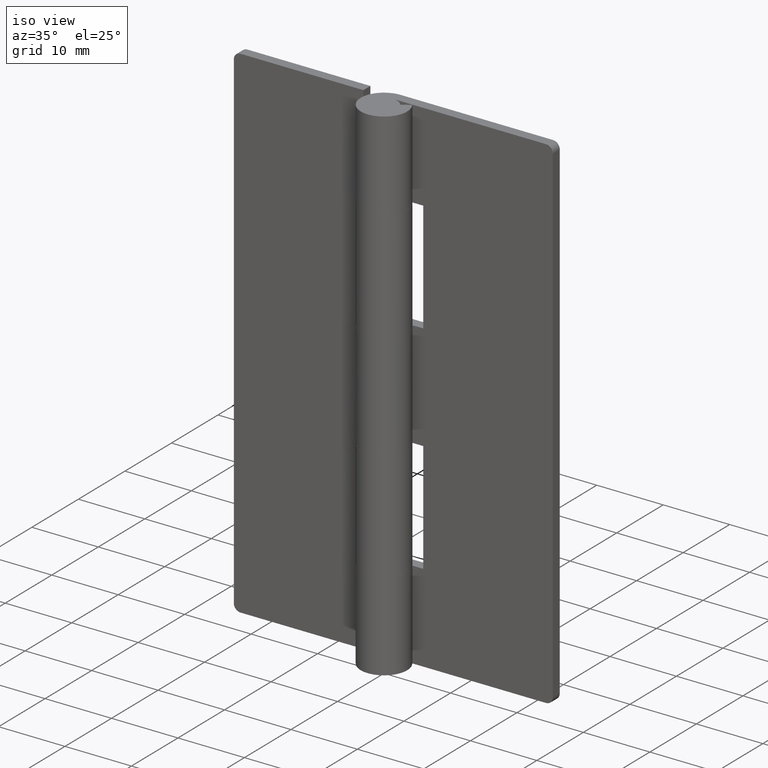
[diagram: clean part render]
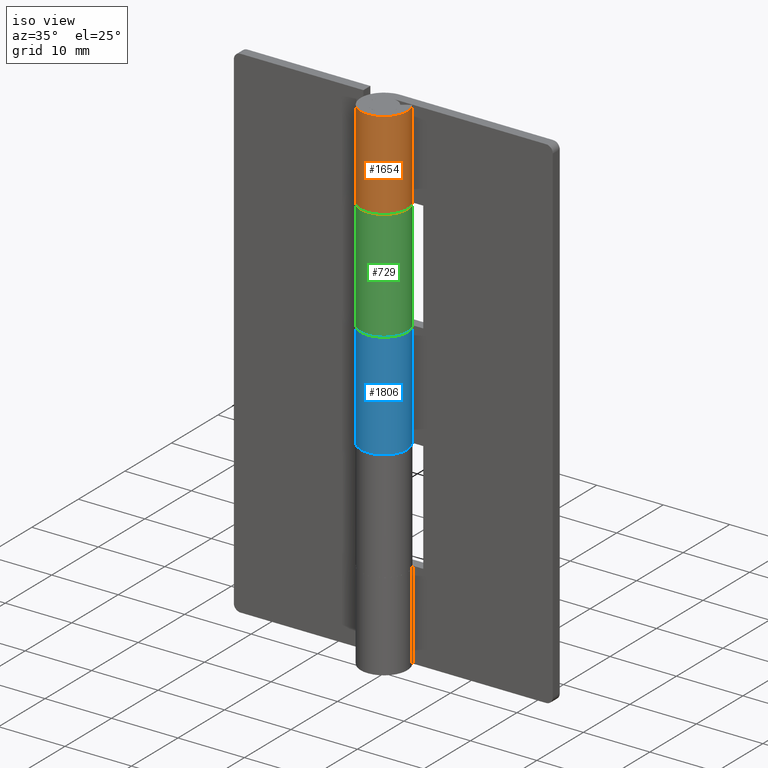
[diagram: same view with three faces highlighted in distinct colors, each labeled with its STEP entity id]
A machine part, iso view with three faces highlighted in distinct colors.
Their STEP definitions:

[orange] entity #1654 — the highlighted face is a freeform B-spline surface patch.
#1280=CARTESIAN_POINT('',(2.906458325866725,1.950000000000000,62.700004999999798));
#1281=VERTEX_POINT('',#1280);
#1282=CARTESIAN_POINT('',(0.0,3.500000000000000,62.700004999999798));
#1283=VERTEX_POINT('',#1282);
#1284=CARTESIAN_POINT('',(2.906458325866724,1.950000000000000,62.700004999999798));
#1285=CARTESIAN_POINT('',(4.428995672699894,-0.319328896485281,62.700004999999798));
#1286=CARTESIAN_POINT('',(2.596662639363708,-2.346772919848170,62.700004999999798));
#1287=CARTESIAN_POINT('',(0.764329606027520,-4.374216943211062,62.700004999999798));
#1288=CARTESIAN_POINT('',(-1.646966909200061,-3.088284313336452,62.700004999999798));
#1289=CARTESIAN_POINT('',(-4.058263424427635,-1.802351683461845,62.700004999999798));
#1290=CARTESIAN_POINT('',(-3.395511382448717,0.848824158269075,62.700004999999798));
#1291=CARTESIAN_POINT('',(-2.732759340469795,3.500000000000000,62.700004999999798));
#1292=CARTESIAN_POINT('',(0.0,3.500000000000000,62.700004999999798));
#1300=(BOUNDED_CURVE()B_SPLINE_CURVE(2,(#1284,#1285,#1286,#1287,#1288,#1289,#1290,#1291,#1292),.UNSPECIFIED.,.F.,.U.)B_SPLINE_CURVE_WITH_KNOTS((3,2,2,2,3),(0.0,0.250000000000000,0.500000000000000,0.750000000000000,1.0),.UNSPECIFIED.)CURVE()GEOMETRIC_REPRESENTATION_ITEM()RATIONAL_B_SPLINE_CURVE((1.0,0.788200858942973,1.0,0.788200858942973,1.0,0.788200858942973,1.0,0.788200858942973,1.0))REPRESENTATION_ITEM(''));
#1301=EDGE_CURVE('',#1281,#1283,#1300,.T.);
#1428=CARTESIAN_POINT('',(0.0,3.500000000000000,75.999991999999693));
#1429=VERTEX_POINT('',#1428);
#1435=CARTESIAN_POINT('',(2.906458325866725,1.950000000000000,75.999991999999693));
#1436=VERTEX_POINT('',#1435);
#1437=CARTESIAN_POINT('',(2.906458325866724,1.950000000000000,75.999991999999693));
#1438=CARTESIAN_POINT('',(4.428995672699894,-0.319328896485281,75.999991999999693));
#1439=CARTESIAN_POINT('',(2.596662639363708,-2.346772919848170,75.999991999999693));
#1440=CARTESIAN_POINT('',(0.764329606027520,-4.374216943211062,75.999991999999693));
#1441=CARTESIAN_POINT('',(-1.646966909200061,-3.088284313336452,75.999991999999693));
#1442=CARTESIAN_POINT('',(-4.058263424427635,-1.802351683461845,75.999991999999693));
#1443=CARTESIAN_POINT('',(-3.395511382448717,0.848824158269075,75.999991999999693));
#1444=CARTESIAN_POINT('',(-2.732759340469795,3.500000000000000,75.999991999999693));
#1445=CARTESIAN_POINT('',(0.0,3.500000000000000,75.999991999999693));
#1453=(BOUNDED_CURVE()B_SPLINE_CURVE(2,(#1437,#1438,#1439,#1440,#1441,#1442,#1443,#1444,#1445),.UNSPECIFIED.,.F.,.U.)B_SPLINE_CURVE_WITH_KNOTS((3,2,2,2,3),(0.0,0.250000000000000,0.500000000000000,0.750000000000000,1.0),.UNSPECIFIED.)CURVE()GEOMETRIC_REPRESENTATION_ITEM()RATIONAL_B_SPLINE_CURVE((1.0,0.788200858942973,1.0,0.788200858942973,1.0,0.788200858942973,1.0,0.788200858942973,1.0))REPRESENTATION_ITEM(''));
#1454=EDGE_CURVE('',#1436,#1429,#1453,.T.);
#1614=CARTESIAN_POINT('',(0.0,3.500000000000000,75.999991999999693));
#1615=CARTESIAN_POINT('',(0.0,3.500000000000000,62.700004999999798));
#1616=QUASI_UNIFORM_CURVE('',1,(#1614,#1615),.UNSPECIFIED.,.F.,.U.);
#1617=EDGE_CURVE('',#1429,#1283,#1616,.T.);
#1622=CARTESIAN_POINT('',(0.100263679686654,3.498563590180359,76.332491674999702));
#1623=CARTESIAN_POINT('',(0.100263679686654,3.498563590180359,62.359192833124787));
#1624=CARTESIAN_POINT('',(-4.324391348104696,3.625367686488793,76.332491674999702));
#1625=CARTESIAN_POINT('',(-4.324391348104696,3.625367686488793,62.359192833124794));
#1626=CARTESIAN_POINT('',(-3.427381751617110,-0.709263229472684,76.332491674999702));
#1627=CARTESIAN_POINT('',(-3.427381751617110,-0.709263229472684,62.359192833124787));
#1628=CARTESIAN_POINT('',(-2.530372155129526,-5.043894145434162,76.332491674999702));
#1629=CARTESIAN_POINT('',(-2.530372155129526,-5.043894145434162,62.359192833124794));
#1630=CARTESIAN_POINT('',(1.480553574345205,-3.171428875679482,76.332491674999702));
#1631=CARTESIAN_POINT('',(1.480553574345205,-3.171428875679482,62.359192833124787));
#1632=CARTESIAN_POINT('',(5.491479303819935,-1.298963605924803,76.332491674999702));
#1633=CARTESIAN_POINT('',(5.491479303819935,-1.298963605924803,62.359192833124794));
#1634=CARTESIAN_POINT('',(2.744503448160206,2.172026892797768,76.332491674999702));
#1635=CARTESIAN_POINT('',(2.744503448160206,2.172026892797768,62.359192833124787));
#1643=(BOUNDED_SURFACE()B_SPLINE_SURFACE(1,2,((#1622,#1624,#1626,#1628,#1630,#1632,#1634),(#1623,#1625,#1627,#1629,#1631,#1633,#1635)),.UNSPECIFIED.,.F.,.F.,.U.)B_SPLINE_SURFACE_WITH_KNOTS((2,2),(3,2,2,3),(0.0,13.973298841874909),(0.0,6.777915536387798,13.555831072775600,20.333746609163398),.UNSPECIFIED.)GEOMETRIC_REPRESENTATION_ITEM()RATIONAL_B_SPLINE_SURFACE(((1.0,0.620235491268260,1.0,0.620235491268260,1.0,0.620235491268260,1.0),(1.0,0.620235491268260,1.0,0.620235491268260,1.0,0.620235491268260,1.0)))REPRESENTATION_ITEM('')SURFACE());
#1644=ORIENTED_EDGE('',*,*,#1301,.F.);
#1645=CARTESIAN_POINT('',(2.906458325866725,1.950000000000000,75.999991999999693));
#1646=CARTESIAN_POINT('',(2.906458325866725,1.950000000000000,62.700004999999798));
#1647=QUASI_UNIFORM_CURVE('',1,(#1645,#1646),.UNSPECIFIED.,.F.,.U.);
#1648=EDGE_CURVE('',#1436,#1281,#1647,.T.);
#1649=ORIENTED_EDGE('',*,*,#1648,.F.);
#1650=ORIENTED_EDGE('',*,*,#1454,.T.);
#1651=ORIENTED_EDGE('',*,*,#1617,.T.);
#1652=EDGE_LOOP('',(#1644,#1649,#1650,#1651));
#1653=FACE_OUTER_BOUND('',#1652,.T.);
#1654=ADVANCED_FACE('',(#1653),#1643,.T.);

[blue] entity #1806 — the highlighted face is a freeform B-spline surface patch.
#998=CARTESIAN_POINT('',(2.906458325866725,1.950000000000000,30.0));
#999=VERTEX_POINT('',#998);
#1000=CARTESIAN_POINT('',(0.0,3.500000000000000,30.0));
#1001=VERTEX_POINT('',#1000);
#1002=CARTESIAN_POINT('',(2.906458325866724,1.950000000000000,30.0));
#1003=CARTESIAN_POINT('',(4.428995672699894,-0.319328896485281,30.000000000000004));
#1004=CARTESIAN_POINT('',(2.596662639363708,-2.346772919848170,30.0));
#1005=CARTESIAN_POINT('',(0.764329606027520,-4.374216943211062,30.000000000000004));
#1006=CARTESIAN_POINT('',(-1.646966909200061,-3.088284313336452,30.0));
#1007=CARTESIAN_POINT('',(-4.058263424427635,-1.802351683461845,30.000000000000004));
#1008=CARTESIAN_POINT('',(-3.395511382448717,0.848824158269075,30.0));
#1009=CARTESIAN_POINT('',(-2.732759340469795,3.500000000000000,30.000000000000004));
#1010=CARTESIAN_POINT('',(0.0,3.500000000000000,30.0));
#1018=(BOUNDED_CURVE()B_SPLINE_CURVE(2,(#1002,#1003,#1004,#1005,#1006,#1007,#1008,#1009,#1010),.UNSPECIFIED.,.F.,.U.)B_SPLINE_CURVE_WITH_KNOTS((3,2,2,2,3),(0.0,0.250000000000000,0.500000000000000,0.750000000000000,1.0),.UNSPECIFIED.)CURVE()GEOMETRIC_REPRESENTATION_ITEM()RATIONAL_B_SPLINE_CURVE((1.0,0.788200858942973,1.0,0.788200858942973,1.0,0.788200858942973,1.0,0.788200858942973,1.0))REPRESENTATION_ITEM(''));
#1019=EDGE_CURVE('',#999,#1001,#1018,.T.);
#1174=CARTESIAN_POINT('',(0.0,3.500000000000000,45.999991999999899));
#1175=VERTEX_POINT('',#1174);
#1176=CARTESIAN_POINT('',(2.906458325866725,1.950000000000000,45.999991999999899));
#1177=VERTEX_POINT('',#1176);
#1178=CARTESIAN_POINT('',(0.0,3.500000000000000,45.999991999999899));
#1179=CARTESIAN_POINT('',(-2.732759340469793,3.500000000000000,45.999991999999899));
#1180=CARTESIAN_POINT('',(-3.395511382448716,0.848824158269077,45.999991999999899));
#1181=CARTESIAN_POINT('',(-4.058263424427640,-1.802351683461844,45.999991999999899));
#1182=CARTESIAN_POINT('',(-1.646966909200060,-3.088284313336452,45.999991999999899));
#1183=CARTESIAN_POINT('',(0.764329606027519,-4.374216943211060,45.999991999999899));
#1184=CARTESIAN_POINT('',(2.596662639363706,-2.346772919848172,45.999991999999899));
#1185=CARTESIAN_POINT('',(4.428995672699895,-0.319328896485282,45.999991999999899));
#1186=CARTESIAN_POINT('',(2.906458325866723,1.950000000000001,45.999991999999899));
#1194=(BOUNDED_CURVE()B_SPLINE_CURVE(2,(#1178,#1179,#1180,#1181,#1182,#1183,#1184,#1185,#1186),.UNSPECIFIED.,.F.,.U.)B_SPLINE_CURVE_WITH_KNOTS((3,2,2,2,3),(0.0,0.250000000000000,0.500000000000000,0.750000000000000,1.0),.UNSPECIFIED.)CURVE()GEOMETRIC_REPRESENTATION_ITEM()RATIONAL_B_SPLINE_CURVE((1.0,0.788200858942972,1.0,0.788200858942972,1.0,0.788200858942972,1.0,0.788200858942972,1.0))REPRESENTATION_ITEM(''));
#1195=EDGE_CURVE('',#1175,#1177,#1194,.T.);
#1497=CARTESIAN_POINT('',(2.906458325866725,1.950000000000000,45.999991999999899));
#1498=CARTESIAN_POINT('',(2.906458325866725,1.950000000000000,30.0));
#1499=QUASI_UNIFORM_CURVE('',1,(#1497,#1498),.UNSPECIFIED.,.F.,.U.);
#1500=EDGE_CURVE('',#1177,#999,#1499,.T.);
#1606=CARTESIAN_POINT('',(0.0,3.500000000000000,45.999991999999899));
#1607=CARTESIAN_POINT('',(0.0,3.500000000000000,30.0));
#1608=QUASI_UNIFORM_CURVE('',1,(#1606,#1607),.UNSPECIFIED.,.F.,.U.);
#1609=EDGE_CURVE('',#1175,#1001,#1608,.T.);
#1778=CARTESIAN_POINT('',(0.100263679686654,3.498563590180359,46.399991799999903));
#1779=CARTESIAN_POINT('',(0.100263679686654,3.498563590180359,29.590000204999999));
#1780=CARTESIAN_POINT('',(-4.324391348104696,3.625367686488793,46.399991799999903));
#1781=CARTESIAN_POINT('',(-4.324391348104696,3.625367686488793,29.590000204999996));
#1782=CARTESIAN_POINT('',(-3.427381751617110,-0.709263229472684,46.399991799999903));
#1783=CARTESIAN_POINT('',(-3.427381751617110,-0.709263229472684,29.590000204999999));
#1784=CARTESIAN_POINT('',(-2.530372155129526,-5.043894145434162,46.399991799999903));
#1785=CARTESIAN_POINT('',(-2.530372155129526,-5.043894145434162,29.590000204999996));
#1786=CARTESIAN_POINT('',(1.480553574345205,-3.171428875679482,46.399991799999903));
#1787=CARTESIAN_POINT('',(1.480553574345205,-3.171428875679482,29.590000204999999));
#1788=CARTESIAN_POINT('',(5.491479303819935,-1.298963605924803,46.399991799999903));
#1789=CARTESIAN_POINT('',(5.491479303819935,-1.298963605924803,29.590000204999996));
#1790=CARTESIAN_POINT('',(2.744503448160206,2.172026892797768,46.399991799999903));
#1791=CARTESIAN_POINT('',(2.744503448160206,2.172026892797768,29.590000204999999));
#1799=(BOUNDED_SURFACE()B_SPLINE_SURFACE(1,2,((#1778,#1780,#1782,#1784,#1786,#1788,#1790),(#1779,#1781,#1783,#1785,#1787,#1789,#1791)),.UNSPECIFIED.,.F.,.F.,.U.)B_SPLINE_SURFACE_WITH_KNOTS((2,2),(3,2,2,3),(0.0,16.809991594999900),(0.0,6.777915536387798,13.555831072775600,20.333746609163398),.UNSPECIFIED.)GEOMETRIC_REPRESENTATION_ITEM()RATIONAL_B_SPLINE_SURFACE(((1.0,0.620235491268260,1.0,0.620235491268260,1.0,0.620235491268260,1.0),(1.0,0.620235491268260,1.0,0.620235491268260,1.0,0.620235491268260,1.0)))REPRESENTATION_ITEM('')SURFACE());
#1800=ORIENTED_EDGE('',*,*,#1019,.F.);
#1801=ORIENTED_EDGE('',*,*,#1500,.F.);
#1802=ORIENTED_EDGE('',*,*,#1195,.F.);
#1803=ORIENTED_EDGE('',*,*,#1609,.T.);
#1804=EDGE_LOOP('',(#1800,#1801,#1802,#1803));
#1805=FACE_OUTER_BOUND('',#1804,.T.);
#1806=ADVANCED_FACE('',(#1805),#1799,.T.);

[green] entity #729 — the highlighted face is a freeform B-spline surface patch.
#249=CARTESIAN_POINT('',(0.0,3.500000000000000,45.999991999999899));
#250=VERTEX_POINT('',#249);
#251=CARTESIAN_POINT('',(-2.906458325866725,1.950000000000000,45.999991999999899));
#252=VERTEX_POINT('',#251);
#253=CARTESIAN_POINT('',(0.0,3.500000000000000,45.999991999999899));
#254=CARTESIAN_POINT('',(2.732759340469793,3.500000000000000,45.999991999999899));
#255=CARTESIAN_POINT('',(3.395511382448716,0.848824158269077,45.999991999999899));
#256=CARTESIAN_POINT('',(4.058263424427640,-1.802351683461844,45.999991999999899));
#257=CARTESIAN_POINT('',(1.646966909200060,-3.088284313336452,45.999991999999899));
#258=CARTESIAN_POINT('',(-0.764329606027519,-4.374216943211060,45.999991999999899));
#259=CARTESIAN_POINT('',(-2.596662639363706,-2.346772919848172,45.999991999999899));
#260=CARTESIAN_POINT('',(-4.428995672699895,-0.319328896485282,45.999991999999899));
#261=CARTESIAN_POINT('',(-2.906458325866723,1.950000000000001,45.999991999999899));
#269=(BOUNDED_CURVE()B_SPLINE_CURVE(2,(#253,#254,#255,#256,#257,#258,#259,#260,#261),.UNSPECIFIED.,.F.,.U.)B_SPLINE_CURVE_WITH_KNOTS((3,2,2,2,3),(0.0,0.250000000000000,0.500000000000000,0.750000000000000,1.0),.UNSPECIFIED.)CURVE()GEOMETRIC_REPRESENTATION_ITEM()RATIONAL_B_SPLINE_CURVE((1.0,0.788200858942972,1.0,0.788200858942972,1.0,0.788200858942972,1.0,0.788200858942972,1.0))REPRESENTATION_ITEM(''));
#270=EDGE_CURVE('',#250,#252,#269,.T.);
#455=CARTESIAN_POINT('',(0.0,3.499999999999950,62.700004999999798));
#456=VERTEX_POINT('',#455);
#497=CARTESIAN_POINT('',(-2.906458325866725,1.950000000000000,62.700004999999798));
#498=VERTEX_POINT('',#497);
#504=CARTESIAN_POINT('',(0.0,3.500000000000000,62.700004999999798));
#505=CARTESIAN_POINT('',(2.732759340469793,3.500000000000000,62.700004999999798));
#506=CARTESIAN_POINT('',(3.395511382448716,0.848824158269077,62.700004999999798));
#507=CARTESIAN_POINT('',(4.058263424427640,-1.802351683461844,62.700004999999798));
#508=CARTESIAN_POINT('',(1.646966909200060,-3.088284313336452,62.700004999999798));
#509=CARTESIAN_POINT('',(-0.764329606027519,-4.374216943211060,62.700004999999798));
#510=CARTESIAN_POINT('',(-2.596662639363706,-2.346772919848172,62.700004999999798));
#511=CARTESIAN_POINT('',(-4.428995672699895,-0.319328896485282,62.700004999999798));
#512=CARTESIAN_POINT('',(-2.906458325866723,1.950000000000001,62.700004999999798));
#520=(BOUNDED_CURVE()B_SPLINE_CURVE(2,(#504,#505,#506,#507,#508,#509,#510,#511,#512),.UNSPECIFIED.,.F.,.U.)B_SPLINE_CURVE_WITH_KNOTS((3,2,2,2,3),(0.0,0.250000000000000,0.500000000000000,0.750000000000000,1.0),.UNSPECIFIED.)CURVE()GEOMETRIC_REPRESENTATION_ITEM()RATIONAL_B_SPLINE_CURVE((1.0,0.788200858942972,1.0,0.788200858942972,1.0,0.788200858942972,1.0,0.788200858942972,1.0))REPRESENTATION_ITEM(''));
#521=EDGE_CURVE('',#456,#498,#520,.T.);
#693=CARTESIAN_POINT('',(-2.818634216196531,2.074921963661804,63.117505324999797));
#694=CARTESIAN_POINT('',(-2.818634216196531,2.074921963661804,45.572054166874892));
#695=CARTESIAN_POINT('',(-5.427168631330671,-1.468586893725613,63.117505324999804));
#696=CARTESIAN_POINT('',(-5.427168631330671,-1.468586893725613,45.572054166874899));
#697=CARTESIAN_POINT('',(-1.387687109414358,-3.213148687248260,63.117505324999797));
#698=CARTESIAN_POINT('',(-1.387687109414358,-3.213148687248260,45.572054166874892));
#699=CARTESIAN_POINT('',(2.651794412501957,-4.957710480770906,63.117505324999804));
#700=CARTESIAN_POINT('',(2.651794412501957,-4.957710480770906,45.572054166874899));
#701=CARTESIAN_POINT('',(3.442957572920831,-0.629319593741604,63.117505324999797));
#702=CARTESIAN_POINT('',(3.442957572920831,-0.629319593741604,45.572054166874892));
#703=CARTESIAN_POINT('',(4.234120733339705,3.699071293287699,63.117505324999804));
#704=CARTESIAN_POINT('',(4.234120733339705,3.699071293287699,45.572054166874899));
#705=CARTESIAN_POINT('',(-0.161306762765109,3.496280899511112,63.117505324999797));
#706=CARTESIAN_POINT('',(-0.161306762765109,3.496280899511112,45.572054166874892));
#714=(BOUNDED_SURFACE()B_SPLINE_SURFACE(1,2,((#693,#695,#697,#699,#701,#703,#705),(#694,#696,#698,#700,#702,#704,#706)),.UNSPECIFIED.,.F.,.F.,.U.)B_SPLINE_SURFACE_WITH_KNOTS((2,2),(3,2,2,3),(0.0,17.545451158124909),(0.0,6.752798371445983,13.505596742891971,20.258395114337951),.UNSPECIFIED.)GEOMETRIC_REPRESENTATION_ITEM()RATIONAL_B_SPLINE_SURFACE(((1.0,0.622514636637620,1.0,0.622514636637620,1.0,0.622514636637620,1.0),(1.0,0.622514636637620,1.0,0.622514636637620,1.0,0.622514636637620,1.0)))REPRESENTATION_ITEM('')SURFACE());
#715=CARTESIAN_POINT('',(-2.906458325866725,1.950000000000000,62.700004999999798));
#716=CARTESIAN_POINT('',(-2.906458325866725,1.950000000000000,45.999991999999899));
#717=QUASI_UNIFORM_CURVE('',1,(#715,#716),.UNSPECIFIED.,.F.,.U.);
#718=EDGE_CURVE('',#498,#252,#717,.T.);
#719=ORIENTED_EDGE('',*,*,#718,.T.);
#720=ORIENTED_EDGE('',*,*,#270,.F.);
#721=CARTESIAN_POINT('',(0.0,3.499999999999950,62.700004999999798));
#722=CARTESIAN_POINT('',(0.0,3.500000000000000,45.999991999999899));
#723=QUASI_UNIFORM_CURVE('',1,(#721,#722),.UNSPECIFIED.,.F.,.U.);
#724=EDGE_CURVE('',#456,#250,#723,.T.);
#725=ORIENTED_EDGE('',*,*,#724,.F.);
#726=ORIENTED_EDGE('',*,*,#521,.T.);
#727=EDGE_LOOP('',(#719,#720,#725,#726));
#728=FACE_OUTER_BOUND('',#727,.T.);
#729=ADVANCED_FACE('',(#728),#714,.T.);